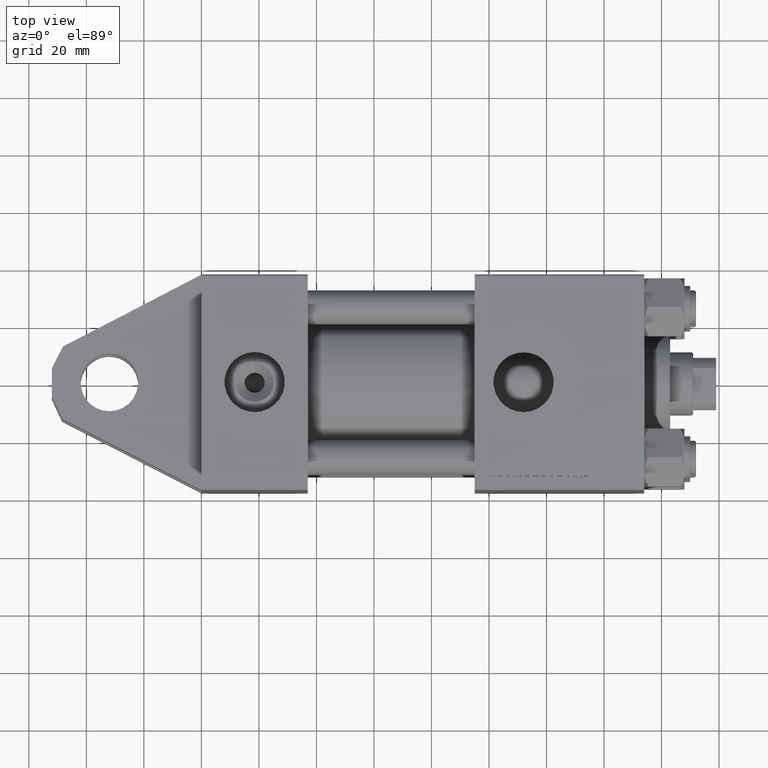
[diagram: clean part render]
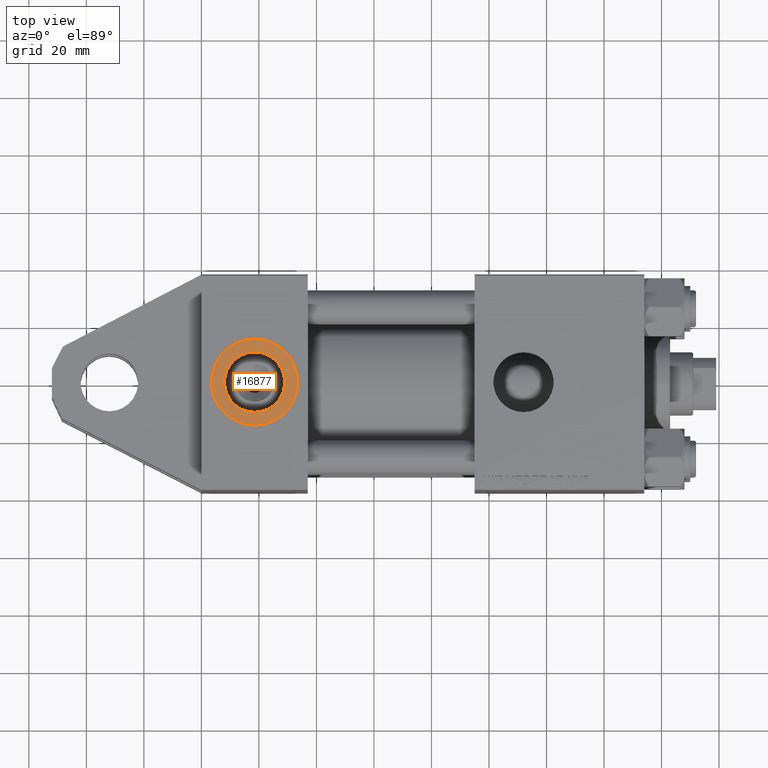
[diagram: same view with one face highlighted and labeled with its STEP entity id]
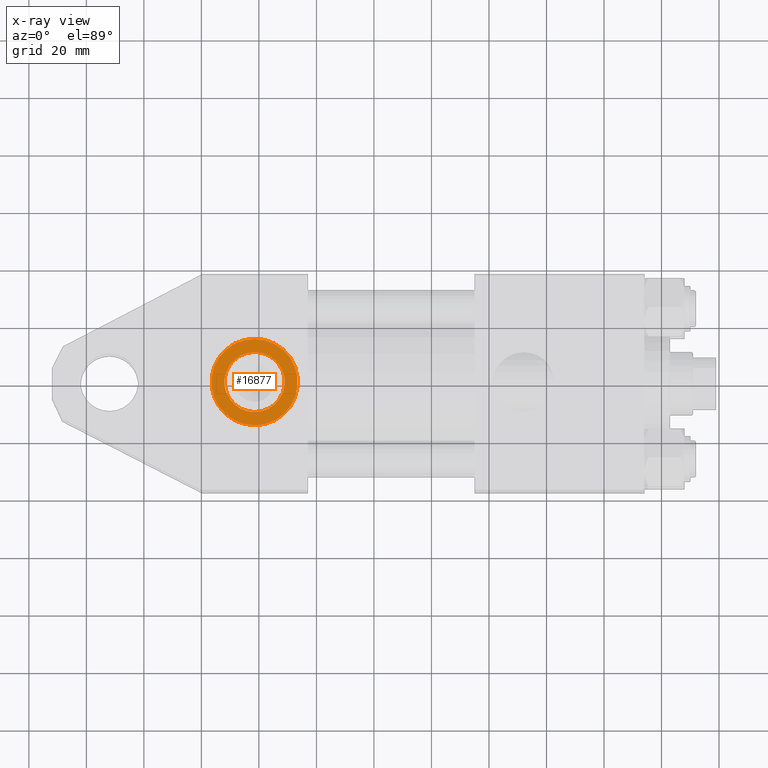
[diagram: x-ray of the same camera — body ghosted, the highlighted face saturated]
A machine part, top view. The second image highlights one B-rep face of the part: STEP entity #16877.
The next image is the same camera in x-ray: the body ghosted, the highlighted face saturated — about 0% of this face is hidden behind the body in this view.
In plain terms, the highlighted planar face has unit normal (0, -0, 1).
Its self-contained STEP definition (entity closure, byte-faithful):
#27 = DIRECTION ( 'NONE',  ( 0.000000000000000000, 0.000000000000000000, -1.000000000000000000 ) ) ;
#143 = VERTEX_POINT ( 'NONE', #19163 ) ;
#1337 = EDGE_CURVE ( 'NONE', #143, #38422, #18680, .T. ) ;
#1786 = DIRECTION ( 'NONE',  ( 0.000000000000000000, -1.000000000000000000, -8.673617379884036705E-17 ) ) ;
#2906 = DIRECTION ( 'NONE',  ( 0.000000000000000000, -1.000000000000000000, -8.673617379884036705E-17 ) ) ;
#3365 = EDGE_CURVE ( 'NONE', #34287, #48624, #19499, .T. ) ;
#4425 = EDGE_LOOP ( 'NONE', ( #12197, #7588 ) ) ;
#4588 = AXIS2_PLACEMENT_3D ( 'NONE', #20891, #1786, #28679 ) ;
#7027 = DIRECTION ( 'NONE',  ( 0.000000000000000000, 0.000000000000000000, -1.000000000000000000 ) ) ;
#7588 = ORIENTED_EDGE ( 'NONE', *, *, #1337, .T. ) ;
#10703 = CARTESIAN_POINT ( 'NONE',  ( 18.50000000000000000, -37.30000000000000426, -3.452099717193846907E-15 ) ) ;
#11050 = DIRECTION ( 'NONE',  ( 0.000000000000000000, -1.000000000000000000, -8.673617379884036705E-17 ) ) ;
#11344 = DIRECTION ( 'NONE',  ( 0.000000000000000000, -1.000000000000000000, -8.673617379884036705E-17 ) ) ;
#12158 = CARTESIAN_POINT ( 'NONE',  ( 18.50000000000000000, -37.30000000000000426, -3.452099717193846907E-15 ) ) ;
#12197 = ORIENTED_EDGE ( 'NONE', *, *, #45458, .T. ) ;
#13587 = AXIS2_PLACEMENT_3D ( 'NONE', #12158, #43071, #42824 ) ;
#16877 = ADVANCED_FACE ( 'NONE', ( #31492, #42572 ), #46327, .T. ) ;
#17187 = CARTESIAN_POINT ( 'NONE',  ( 18.50000000000000000, -37.30000000000000426, -10.48000000000000398 ) ) ;
#18680 = CIRCLE ( 'NONE', #38743, 15.00000000000000178 ) ;
#19163 = CARTESIAN_POINT ( 'NONE',  ( 18.50000000000000355, -37.30000000000000426, 14.99999999999999822 ) ) ;
#19499 = CIRCLE ( 'NONE', #29160, 10.48000000000000043 ) ;
#20891 = CARTESIAN_POINT ( 'NONE',  ( 18.50000000000000000, -37.30000000000000426, -3.452099717193846907E-15 ) ) ;
#26127 = CARTESIAN_POINT ( 'NONE',  ( 18.50000000000000000, -37.30000000000000426, -3.452099717193846907E-15 ) ) ;
#26996 = AXIS2_PLACEMENT_3D ( 'NONE', #34705, #11344, #27 ) ;
#28679 = DIRECTION ( 'NONE',  ( 0.000000000000000000, 0.000000000000000000, -1.000000000000000000 ) ) ;
#29160 = AXIS2_PLACEMENT_3D ( 'NONE', #10703, #2906, #48906 ) ;
#30822 = CARTESIAN_POINT ( 'NONE',  ( 18.50000000000000000, -37.30000000000000426, 10.47999999999999687 ) ) ;
#31492 = FACE_BOUND ( 'NONE', #35410, .T. ) ;
#34229 = CARTESIAN_POINT ( 'NONE',  ( 18.50000000000000000, -37.30000000000000426, -15.00000000000000533 ) ) ;
#34287 = VERTEX_POINT ( 'NONE', #30822 ) ;
#34440 = ORIENTED_EDGE ( 'NONE', *, *, #3365, .F. ) ;
#34705 = CARTESIAN_POINT ( 'NONE',  ( 18.50000000000000000, -37.30000000000000426, -3.452099717193846907E-15 ) ) ;
#35410 = EDGE_LOOP ( 'NONE', ( #37583, #34440 ) ) ;
#37583 = ORIENTED_EDGE ( 'NONE', *, *, #43819, .F. ) ;
#38422 = VERTEX_POINT ( 'NONE', #34229 ) ;
#38743 = AXIS2_PLACEMENT_3D ( 'NONE', #26127, #11050, #7027 ) ;
#42572 = FACE_OUTER_BOUND ( 'NONE', #4425, .T. ) ;
#42824 = DIRECTION ( 'NONE',  ( 0.000000000000000000, 8.673617379884036705E-17, -1.000000000000000000 ) ) ;
#43071 = DIRECTION ( 'NONE',  ( 0.000000000000000000, -1.000000000000000000, -8.673617379884036705E-17 ) ) ;
#43819 = EDGE_CURVE ( 'NONE', #48624, #34287, #48684, .T. ) ;
#45458 = EDGE_CURVE ( 'NONE', #38422, #143, #47939, .T. ) ;
#46327 = PLANE ( 'NONE',  #13587 ) ;
#47939 = CIRCLE ( 'NONE', #4588, 15.00000000000000178 ) ;
#48624 = VERTEX_POINT ( 'NONE', #17187 ) ;
#48684 = CIRCLE ( 'NONE', #26996, 10.48000000000000043 ) ;
#48906 = DIRECTION ( 'NONE',  ( 0.000000000000000000, 0.000000000000000000, -1.000000000000000000 ) ) ;